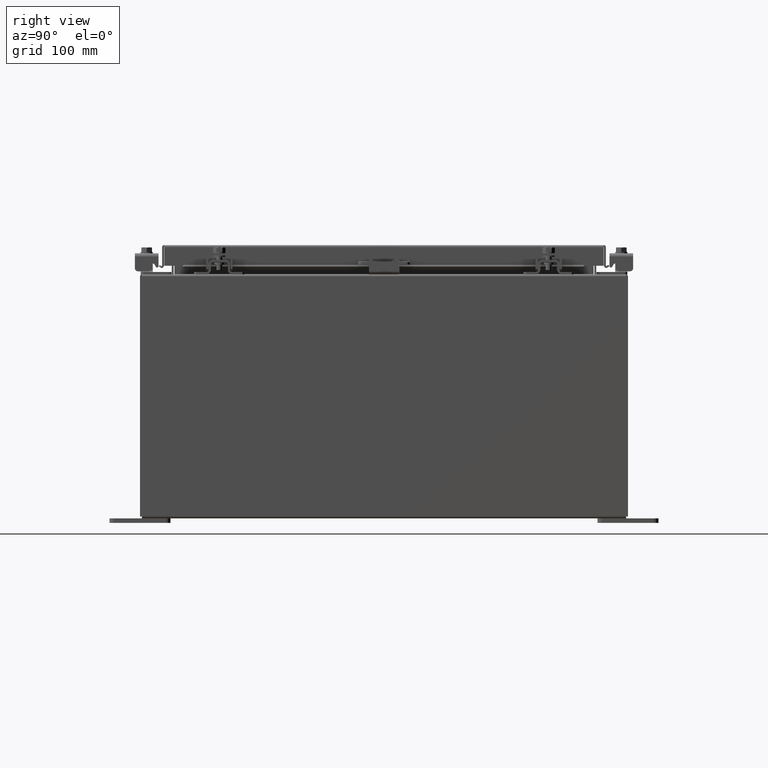
[diagram: clean part render]
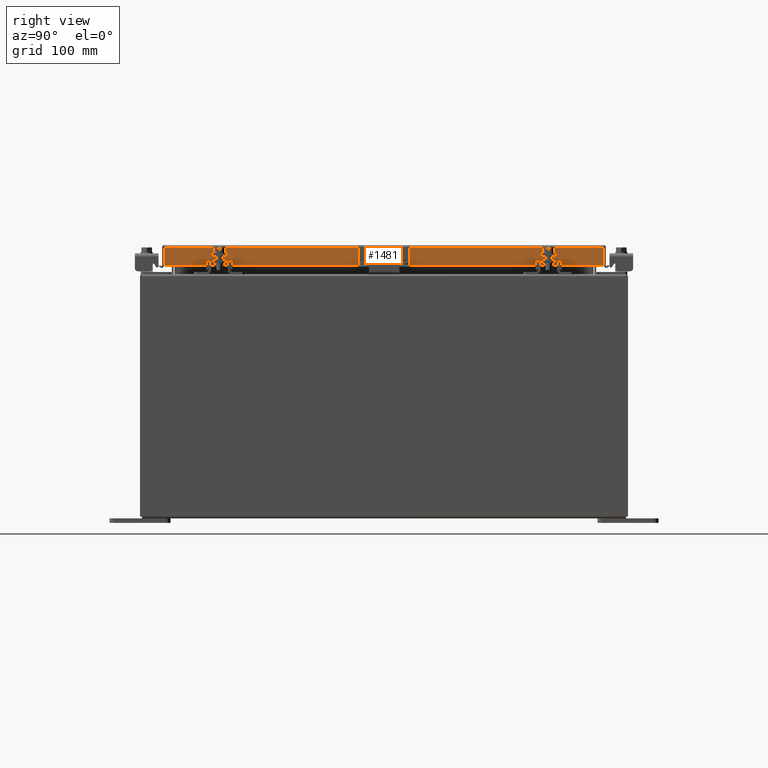
[diagram: same view with one face highlighted and labeled with its STEP entity id]
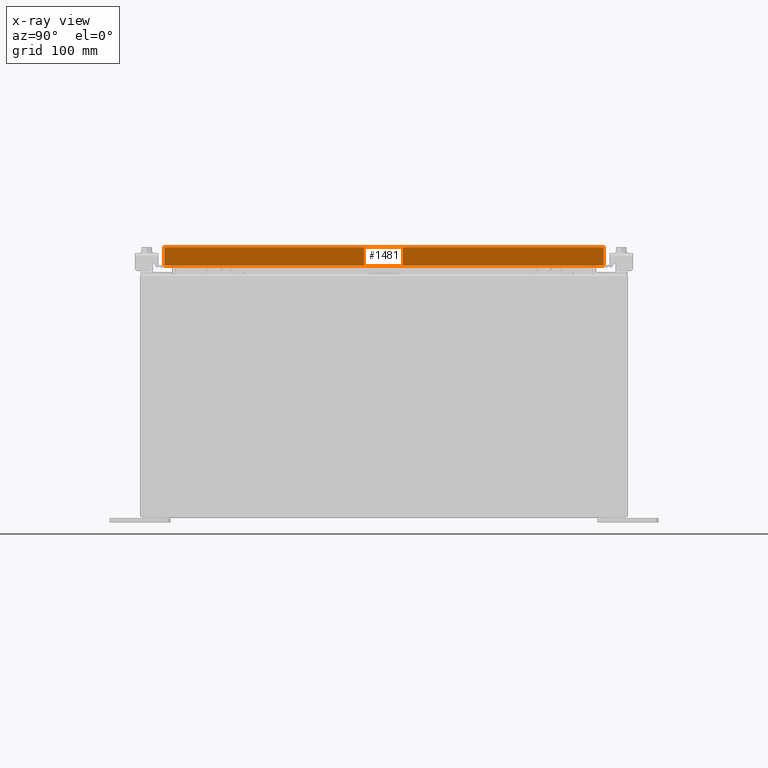
[diagram: x-ray of the same camera — body ghosted, the highlighted face saturated]
A machine part, right view. The second image highlights one B-rep face of the part: STEP entity #1481.
The next image is the same camera in x-ray: the body ghosted, the highlighted face saturated — about 0% of this face is hidden behind the body in this view.
In plain terms, the highlighted planar face has unit normal (1, 0, 0).
Its self-contained STEP definition (entity closure, byte-faithful):
#144 = CARTESIAN_POINT ( 'NONE',  ( 7.078000000000004700, -9.093999999999999400, -0.8499999999999996400 ) ) ;
#939 = CARTESIAN_POINT ( 'NONE',  ( 7.078000000000002100, 0.0000000000000000000, -0.08770000000000007000 ) ) ;
#1322 = CARTESIAN_POINT ( 'NONE',  ( 7.078000000000004700, 9.005157864376274200, -0.8499999999999996400 ) ) ;
#1481 = ADVANCED_FACE ( 'NONE', ( #1971 ), #3822, .T. ) ;
#1596 = CARTESIAN_POINT ( 'NONE',  ( 7.078000000000001200, 8.255157864376270600, -0.8500000000000024200 ) ) ;
#1623 = DIRECTION ( 'NONE',  ( 2.818880942772360100E-015, 0.0000000000000000000, -1.000000000000000000 ) ) ;
#1640 = CARTESIAN_POINT ( 'NONE',  ( 7.078000000000001200, -8.255157864376260000, -0.8500000000000024200 ) ) ;
#1754 = LINE ( 'NONE', #10162, #24532 ) ;
#1971 = FACE_OUTER_BOUND ( 'NONE', #13755, .T. ) ;
#2228 = VERTEX_POINT ( 'NONE', #22389 ) ;
#2434 = DIRECTION ( 'NONE',  ( 0.0000000000000000000, -1.000000000000000000, 0.0000000000000000000 ) ) ;
#3231 = LINE ( 'NONE', #9585, #26725 ) ;
#3822 = PLANE ( 'NONE',  #25584 ) ;
#4040 = CARTESIAN_POINT ( 'NONE',  ( 7.078000000000004700, -9.005157864376261800, -0.8499999999999996400 ) ) ;
#4487 = CARTESIAN_POINT ( 'NONE',  ( 7.078000000000002100, 9.005157864376270600, -0.08770000000000007000 ) ) ;
#5147 = EDGE_CURVE ( 'NONE', #7719, #13700, #3231, .T. ) ;
#6375 = ORIENTED_EDGE ( 'NONE', *, *, #5147, .F. ) ;
#6487 = VECTOR ( 'NONE', #8155, 39.37007874015748100 ) ;
#7719 = VERTEX_POINT ( 'NONE', #4040 ) ;
#7867 = EDGE_CURVE ( 'NONE', #22107, #7719, #17767, .T. ) ;
#8155 = DIRECTION ( 'NONE',  ( -2.818880942772360100E-015, -6.982962677686265900E-015, 1.000000000000000000 ) ) ;
#8424 = CARTESIAN_POINT ( 'NONE',  ( 7.078000000000002100, 0.0000000000000000000, 2.021285296895435400E-014 ) ) ;
#9585 = CARTESIAN_POINT ( 'NONE',  ( 7.078000000000002100, -9.005157864376267100, -0.07469999999999978000 ) ) ;
#10162 = CARTESIAN_POINT ( 'NONE',  ( 7.078000000000004700, -9.093999999999999400, -0.8499999999999996400 ) ) ;
#11735 = VECTOR ( 'NONE', #2434, 39.37007874015748100 ) ;
#12074 = EDGE_CURVE ( 'NONE', #2228, #22107, #18611, .T. ) ;
#12426 = DIRECTION ( 'NONE',  ( 0.0000000000000000000, -1.000000000000000000, 0.0000000000000000000 ) ) ;
#12541 = EDGE_CURVE ( 'NONE', #13101, #24711, #18578, .T. ) ;
#12979 = EDGE_CURVE ( 'NONE', #24711, #13700, #28592, .T. ) ;
#13101 = VERTEX_POINT ( 'NONE', #1322 ) ;
#13508 = ORIENTED_EDGE ( 'NONE', *, *, #12541, .T. ) ;
#13700 = VERTEX_POINT ( 'NONE', #14745 ) ;
#13755 = EDGE_LOOP ( 'NONE', ( #6375, #19025, #17431, #14477, #13508, #19043 ) ) ;
#14477 = ORIENTED_EDGE ( 'NONE', *, *, #19801, .F. ) ;
#14745 = CARTESIAN_POINT ( 'NONE',  ( 7.078000000000002100, -9.005157864376267100, -0.08770000000000007000 ) ) ;
#15268 = DIRECTION ( 'NONE',  ( 1.000000000000000000, 0.0000000000000000000, 2.818880942772360100E-015 ) ) ;
#17431 = ORIENTED_EDGE ( 'NONE', *, *, #12074, .F. ) ;
#17767 = LINE ( 'NONE', #144, #11735 ) ;
#17881 = VECTOR ( 'NONE', #26562, 39.37007874015748100 ) ;
#18578 = LINE ( 'NONE', #26232, #6487 ) ;
#18611 = LINE ( 'NONE', #1596, #17881 ) ;
#19025 = ORIENTED_EDGE ( 'NONE', *, *, #7867, .F. ) ;
#19043 = ORIENTED_EDGE ( 'NONE', *, *, #12979, .T. ) ;
#19801 = EDGE_CURVE ( 'NONE', #13101, #2228, #1754, .T. ) ;
#21445 = DIRECTION ( 'NONE',  ( 0.0000000000000000000, -1.000000000000000000, 0.0000000000000000000 ) ) ;
#22107 = VERTEX_POINT ( 'NONE', #1640 ) ;
#22389 = CARTESIAN_POINT ( 'NONE',  ( 7.078000000000001200, 8.255157864376270600, -0.8500000000000024200 ) ) ;
#22545 = VECTOR ( 'NONE', #21445, 39.37007874015748100 ) ;
#24532 = VECTOR ( 'NONE', #12426, 39.37007874015748100 ) ;
#24711 = VERTEX_POINT ( 'NONE', #4487 ) ;
#25584 = AXIS2_PLACEMENT_3D ( 'NONE', #8424, #15268, #1623 ) ;
#26232 = CARTESIAN_POINT ( 'NONE',  ( 7.078000000000002100, 9.005157864376268900, 8.309553424256680500E-014 ) ) ;
#26562 = DIRECTION ( 'NONE',  ( 0.0000000000000000000, -1.000000000000000000, 0.0000000000000000000 ) ) ;
#26725 = VECTOR ( 'NONE', #27752, 39.37007874015748100 ) ;
#27752 = DIRECTION ( 'NONE',  ( -2.818880942772360100E-015, -6.982962677686265900E-015, 1.000000000000000000 ) ) ;
#28592 = LINE ( 'NONE', #939, #22545 ) ;